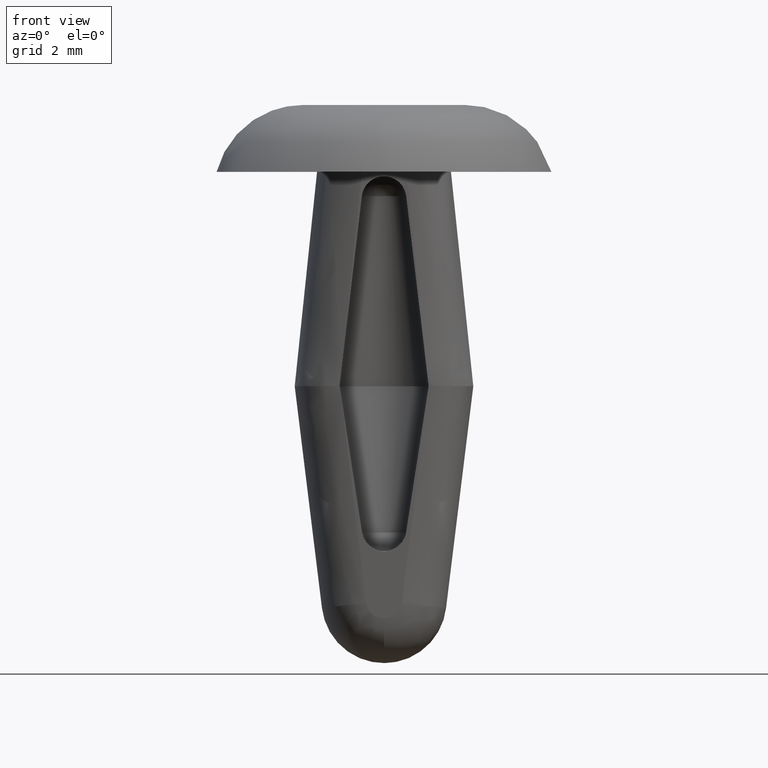
[diagram: clean part render]
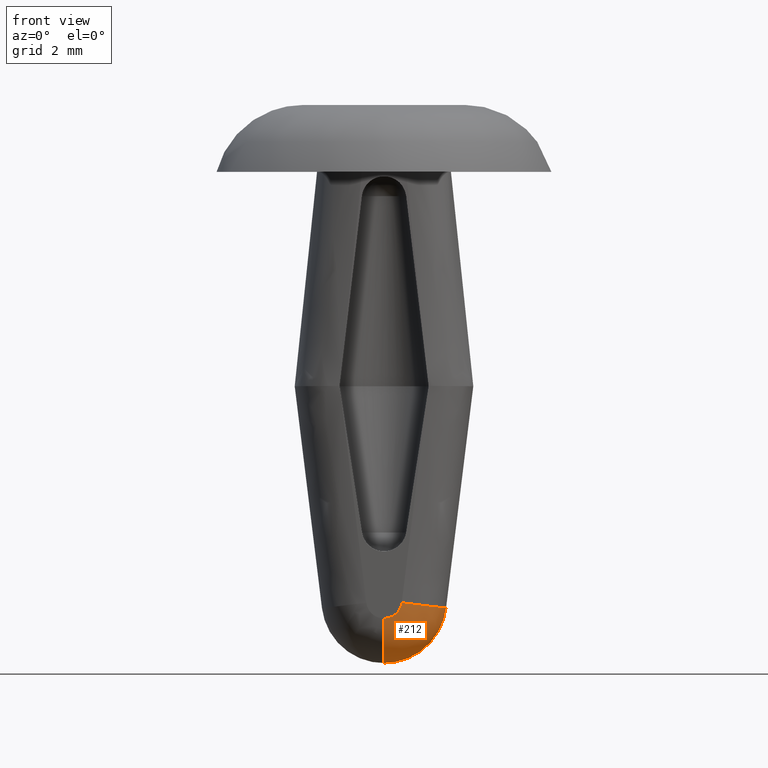
[diagram: same view with one face highlighted and labeled with its STEP entity id]
A machine part, front view. The second image highlights one B-rep face of the part: STEP entity #212.
In plain terms, the highlighted face is a freeform B-spline surface patch.
Its self-contained STEP definition (entity closure, byte-faithful):
#72=CARTESIAN_POINT('',(0.000001144234802,2.675988E-015,-10.999997999999060));
#73=VERTEX_POINT('',#72);
#89=CARTESIAN_POINT('',(-7.832641E-014,-1.0,-9.999998000003195));
#90=VERTEX_POINT('',#89);
#91=CARTESIAN_POINT('',(-7.832641E-014,-1.0,-9.999998000003197));
#92=CARTESIAN_POINT('',(0.000000279909762,-0.999999999996874,-10.489250417408385));
#93=CARTESIAN_POINT('',(0.000000672691860,-0.613725799185414,-10.789517248284220));
#94=CARTESIAN_POINT('',(0.000000948023874,-0.342955684759026,-10.999997999998678));
#95=CARTESIAN_POINT('',(0.000001144234802,2.675988E-015,-10.999997999999064));
#103=(BOUNDED_CURVE()B_SPLINE_CURVE(2,(#91,#92,#93,#94,#95),.UNSPECIFIED.,.F.,.U.)B_SPLINE_CURVE_WITH_KNOTS((3,2,3),(0.105785928066303,0.333333333333333,0.500000000000001),.UNSPECIFIED.)CURVE()GEOMETRIC_REPRESENTATION_ITEM()RATIONAL_B_SPLINE_CURVE((0.908802133323438,0.856316953266534,1.0,0.894759624143042,0.894759624143043))REPRESENTATION_ITEM(''));
#104=EDGE_CURVE('',#90,#73,#103,.T.);
#139=CARTESIAN_POINT('',(0.0,-0.996853652289871,-9.920733910297637));
#140=CARTESIAN_POINT('',(0.0,-1.039610512481497,-10.458459536145572));
#141=CARTESIAN_POINT('',(0.0,-0.613725799185414,-10.789517248286090));
#142=CARTESIAN_POINT('',(0.0,-0.306698787757350,-11.028181977954485));
#143=CARTESIAN_POINT('',(0.0,0.080904839928596,-10.996719830239575));
#144=CARTESIAN_POINT('',(0.303485220183196,-0.996853652289871,-9.920733910297637));
#145=CARTESIAN_POINT('',(0.812289425509527,-1.039610512481497,-10.458459536145574));
#146=CARTESIAN_POINT('',(1.125541292346244,-0.613725799185415,-10.789517248286085));
#147=CARTESIAN_POINT('',(1.351369507110730,-0.306698787757350,-11.028181977954485));
#148=CARTESIAN_POINT('',(1.321599542101712,0.080904839928596,-10.996719830239572));
#149=CARTESIAN_POINT('',(0.320246377217645,-0.996853652289872,-9.617711893796347));
#150=CARTESIAN_POINT('',(0.857151282736607,-1.039610512481497,-9.647409892436425));
#151=CARTESIAN_POINT('',(1.187703707828567,-0.613725799185414,-9.665693848067946));
#152=CARTESIAN_POINT('',(1.426004168088868,-0.306698787757350,-9.678875040252992));
#153=CARTESIAN_POINT('',(1.394590040447730,0.080904839928596,-9.677137420219397));
#161=(BOUNDED_SURFACE()B_SPLINE_SURFACE(2,2,((#139,#144,#149),(#140,#145,#150),(#141,#146,#151),(#142,#147,#152),(#143,#148,#153)),.UNSPECIFIED.,.F.,.F.,.U.)B_SPLINE_SURFACE_WITH_KNOTS((3,2,3),(3,3),(0.0,1.015834252452511,1.781526194944219),(0.0,2.224174850282786),.UNSPECIFIED.)GEOMETRIC_REPRESENTATION_ITEM()RATIONAL_B_SPLINE_SURFACE(((0.919354857792946,0.660486821277260,0.899349409249476),(0.843883189189270,0.606266144603836,0.825520027701708),(1.0,0.718424246827673,0.978239688000892),(0.882325897323622,0.633884318241274,0.863126210512967),(0.896228618921531,0.643872370534107,0.876726404551268)))REPRESENTATION_ITEM('')SURFACE());
#162=CARTESIAN_POINT('',(1.389560529295354,0.0,-9.770648330865120));
#163=VERTEX_POINT('',#162);
#164=CARTESIAN_POINT('',(1.389560529295369,0.0,-9.770648330865122));
#165=CARTESIAN_POINT('',(1.238585634274197,0.0,-10.999996987691016));
#166=CARTESIAN_POINT('',(0.000001144234802,2.675988E-015,-10.999997999999062));
#174=(BOUNDED_CURVE()B_SPLINE_CURVE(2,(#164,#165,#166),.UNSPECIFIED.,.F.,.U.)B_SPLINE_CURVE_WITH_KNOTS((3,3),(0.0,0.500000308367615),.UNSPECIFIED.)CURVE()GEOMETRIC_REPRESENTATION_ITEM()RATIONAL_B_SPLINE_CURVE((1.0,0.748964035211543,1.000000309645447))REPRESENTATION_ITEM(''));
#175=EDGE_CURVE('',#163,#73,#174,.T.);
#176=ORIENTED_EDGE('',*,*,#175,.F.);
#177=CARTESIAN_POINT('',(0.397017337544821,-1.0,-9.648755242727290));
#178=VERTEX_POINT('',#177);
#179=CARTESIAN_POINT('',(1.389560529295354,0.0,-9.770648330865120));
#180=CARTESIAN_POINT('',(1.389560570866254,-0.414213562373095,-9.770648351588450));
#181=CARTESIAN_POINT('',(1.098851387893795,-0.707106781186548,-9.734946691089384));
#182=CARTESIAN_POINT('',(0.808142204921337,-0.999999999999999,-9.699245030590316));
#183=CARTESIAN_POINT('',(0.397017337544822,-0.999999999999999,-9.648755242727296));
#191=(BOUNDED_CURVE()B_SPLINE_CURVE(2,(#179,#180,#181,#182,#183),.UNSPECIFIED.,.F.,.U.)B_SPLINE_CURVE_WITH_KNOTS((3,2,3),(0.0,0.500000000000000,1.0),.UNSPECIFIED.)CURVE()GEOMETRIC_REPRESENTATION_ITEM()RATIONAL_B_SPLINE_CURVE((1.0,0.923879532511287,1.0,0.923879532511287,1.0))REPRESENTATION_ITEM(''));
#192=EDGE_CURVE('',#163,#178,#191,.T.);
#193=ORIENTED_EDGE('',*,*,#192,.T.);
#194=CARTESIAN_POINT('',(-7.832641E-014,-1.0,-9.999998000003195));
#195=CARTESIAN_POINT('',(0.000001184424393,-1.0,-9.999998000000002));
#196=CARTESIAN_POINT('',(0.000002368848943,-1.0,-9.999997999992987));
#197=CARTESIAN_POINT('',(0.353881831646062,-1.0,-9.999995904275508));
#198=CARTESIAN_POINT('',(0.397017337544821,-1.0,-9.648755242727290));
#206=(BOUNDED_CURVE()B_SPLINE_CURVE(2,(#194,#195,#196,#197,#198),.UNSPECIFIED.,.F.,.U.)B_SPLINE_CURVE_WITH_KNOTS((3,2,3),(0.499997765606387,0.500000000000000,1.0),.UNSPECIFIED.)CURVE()GEOMETRIC_REPRESENTATION_ITEM()RATIONAL_B_SPLINE_CURVE((0.999997756371481,0.999998878180727,1.0,0.748965610504000,1.0))REPRESENTATION_ITEM(''));
#207=EDGE_CURVE('',#90,#178,#206,.T.);
#208=ORIENTED_EDGE('',*,*,#207,.F.);
#209=ORIENTED_EDGE('',*,*,#104,.T.);
#210=EDGE_LOOP('',(#176,#193,#208,#209));
#211=FACE_OUTER_BOUND('',#210,.T.);
#212=ADVANCED_FACE('',(#211),#161,.T.);